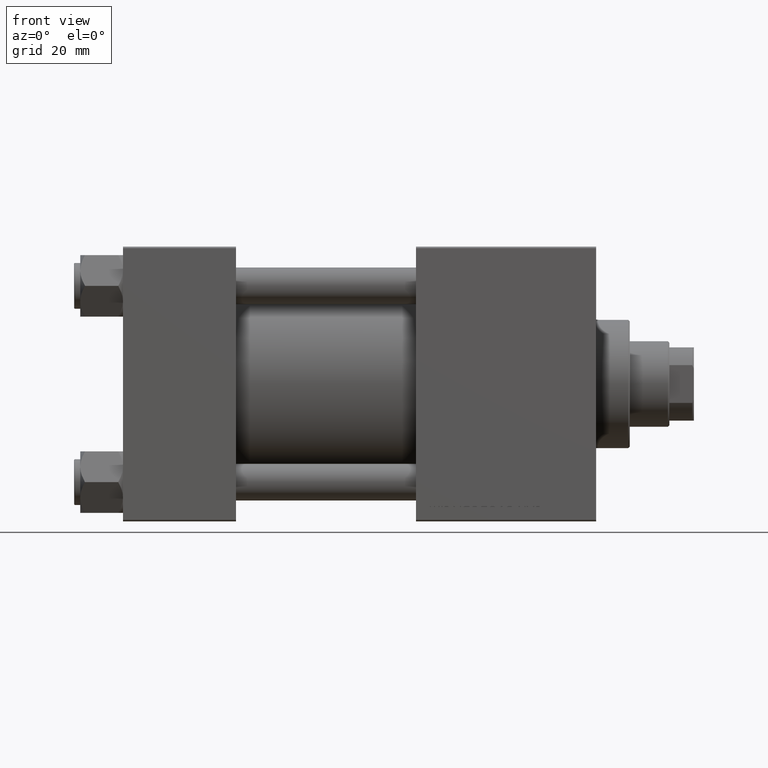
[diagram: clean part render]
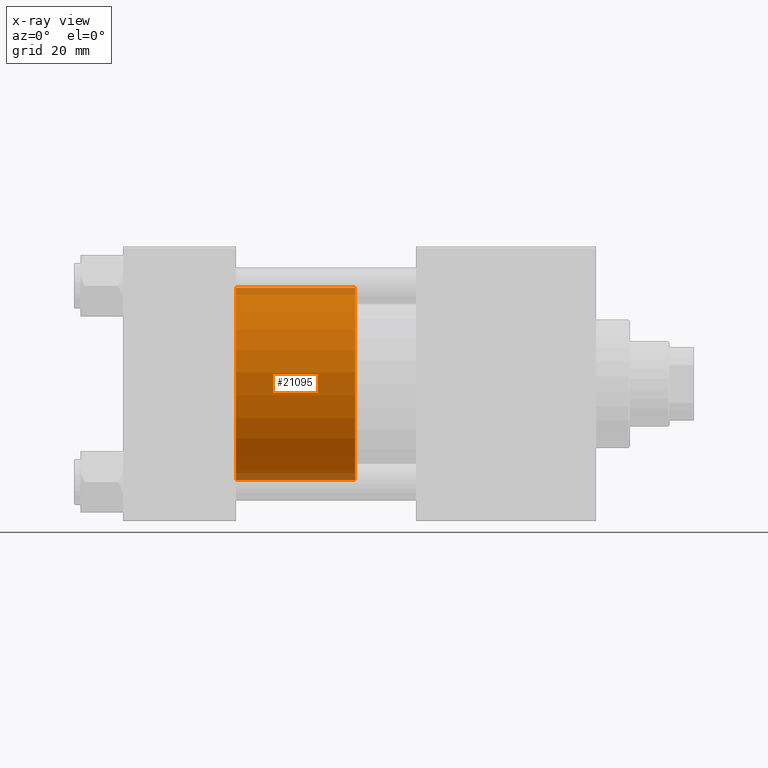
[diagram: x-ray — body ghosted, one internal face saturated and labeled with its STEP entity id]
A machine part, front view, then the same camera in x-ray: the body is ghosted and one INTERNAL B-rep face — a face not visible from any outside direction — is saturated and labeled: STEP entity #21095.
In plain terms, the highlighted cylindrical surface (partial cylindrical patch) has radius 31.5 mm, axis along (-1, 0, 0).
Its self-contained STEP definition (entity closure, byte-faithful):
#752 = CARTESIAN_POINT ( 'NONE',  ( 0.000000000000000000, 0.000000000000000000, 39.00000000000000000 ) ) ;
#1685 = ORIENTED_EDGE ( 'NONE', *, *, #35097, .F. ) ;
#1869 = DIRECTION ( 'NONE',  ( -0.000000000000000000, -0.000000000000000000, -1.000000000000000000 ) ) ;
#3228 = VERTEX_POINT ( 'NONE', #48517 ) ;
#4572 = ORIENTED_EDGE ( 'NONE', *, *, #22199, .T. ) ;
#4826 = CIRCLE ( 'NONE', #30781, 31.50000000000000000 ) ;
#5172 = LINE ( 'NONE', #20918, #40404 ) ;
#5257 = AXIS2_PLACEMENT_3D ( 'NONE', #36766, #33972, #13915 ) ;
#6628 = DIRECTION ( 'NONE',  ( -0.000000000000000000, -0.000000000000000000, -1.000000000000000000 ) ) ;
#7394 = EDGE_CURVE ( 'NONE', #30862, #3228, #4826, .T. ) ;
#9188 = CARTESIAN_POINT ( 'NONE',  ( 31.50000000000000000, 3.857637417314162689E-15, 39.00000000000000000 ) ) ;
#10183 = CYLINDRICAL_SURFACE ( 'NONE', #31185, 31.50000000000000000 ) ;
#10291 = LINE ( 'NONE', #37211, #26185 ) ;
#11680 = DIRECTION ( 'NONE',  ( 0.000000000000000000, 0.000000000000000000, 1.000000000000000000 ) ) ;
#12145 = VERTEX_POINT ( 'NONE', #13287 ) ;
#12183 = DIRECTION ( 'NONE',  ( 1.000000000000000000, 0.000000000000000000, 0.000000000000000000 ) ) ;
#13287 = CARTESIAN_POINT ( 'NONE',  ( -31.50000000000000000, 0.000000000000000000, 0.000000000000000000 ) ) ;
#13915 = DIRECTION ( 'NONE',  ( 1.000000000000000000, 0.000000000000000000, 0.000000000000000000 ) ) ;
#16752 = EDGE_CURVE ( 'NONE', #30862, #34389, #10291, .T. ) ;
#20649 = CARTESIAN_POINT ( 'NONE',  ( 31.50000000000000000, 3.857637417314162689E-15, 0.000000000000000000 ) ) ;
#20918 = CARTESIAN_POINT ( 'NONE',  ( -31.50000000000000000, 0.000000000000000000, 39.00000000000000000 ) ) ;
#21095 = ADVANCED_FACE ( 'NONE', ( #44710 ), #10183, .T. ) ;
#21623 = CARTESIAN_POINT ( 'NONE',  ( 0.000000000000000000, 0.000000000000000000, 39.00000000000000000 ) ) ;
#22199 = EDGE_CURVE ( 'NONE', #34389, #12145, #42561, .T. ) ;
#22908 = EDGE_LOOP ( 'NONE', ( #23956, #23632, #4572, #1685 ) ) ;
#23632 = ORIENTED_EDGE ( 'NONE', *, *, #16752, .T. ) ;
#23956 = ORIENTED_EDGE ( 'NONE', *, *, #7394, .F. ) ;
#26035 = DIRECTION ( 'NONE',  ( -0.000000000000000000, -0.000000000000000000, -1.000000000000000000 ) ) ;
#26185 = VECTOR ( 'NONE', #26035, 1000.000000000000000 ) ;
#30781 = AXIS2_PLACEMENT_3D ( 'NONE', #752, #11680, #12183 ) ;
#30862 = VERTEX_POINT ( 'NONE', #9188 ) ;
#31185 = AXIS2_PLACEMENT_3D ( 'NONE', #21623, #6628, #41159 ) ;
#33972 = DIRECTION ( 'NONE',  ( 0.000000000000000000, 0.000000000000000000, 1.000000000000000000 ) ) ;
#34389 = VERTEX_POINT ( 'NONE', #20649 ) ;
#35097 = EDGE_CURVE ( 'NONE', #3228, #12145, #5172, .T. ) ;
#36766 = CARTESIAN_POINT ( 'NONE',  ( 0.000000000000000000, 0.000000000000000000, 0.000000000000000000 ) ) ;
#37211 = CARTESIAN_POINT ( 'NONE',  ( 31.50000000000000000, 3.857637417314162689E-15, 39.00000000000000000 ) ) ;
#40404 = VECTOR ( 'NONE', #1869, 1000.000000000000000 ) ;
#41159 = DIRECTION ( 'NONE',  ( -1.000000000000000000, 0.000000000000000000, 0.000000000000000000 ) ) ;
#42561 = CIRCLE ( 'NONE', #5257, 31.50000000000000000 ) ;
#44710 = FACE_OUTER_BOUND ( 'NONE', #22908, .T. ) ;
#48517 = CARTESIAN_POINT ( 'NONE',  ( -31.50000000000000000, 0.000000000000000000, 39.00000000000000000 ) ) ;